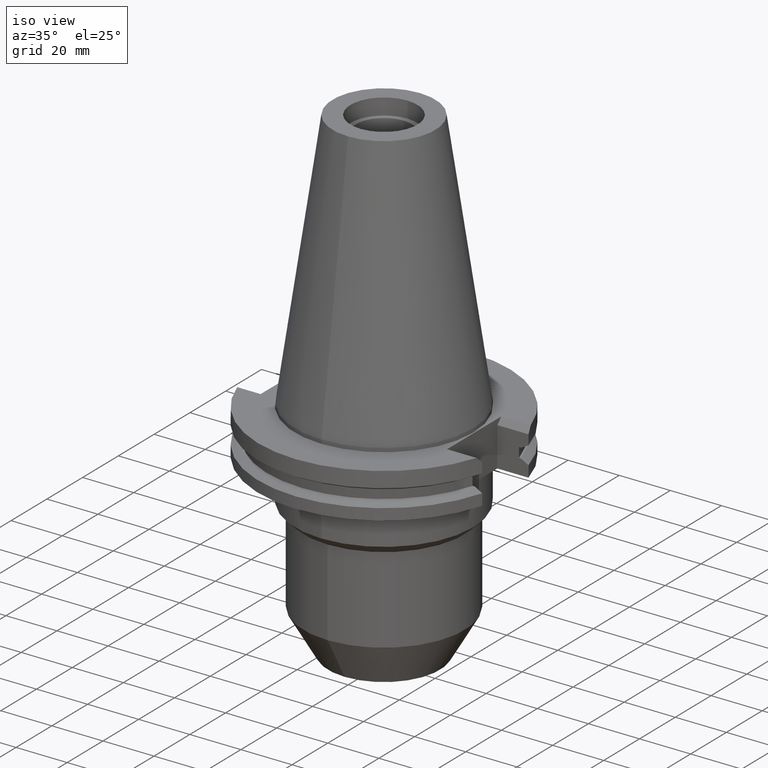
[diagram: clean part render]
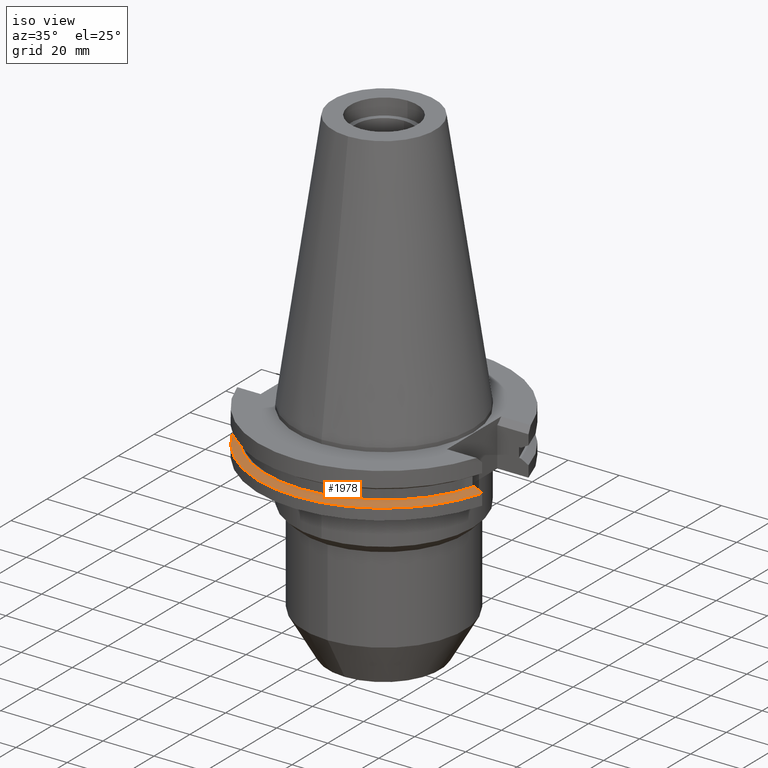
[diagram: same view with one face highlighted and labeled with its STEP entity id]
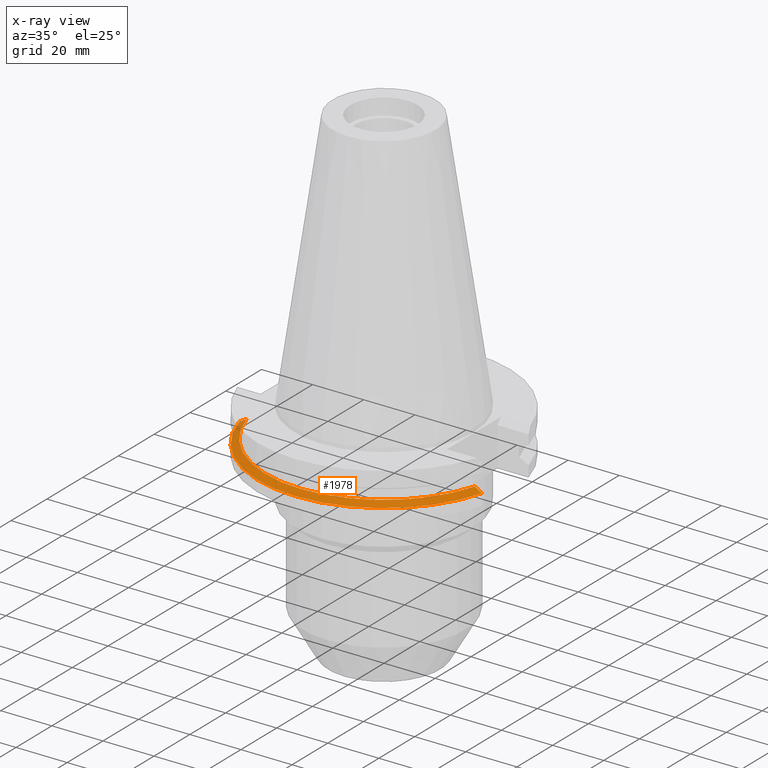
[diagram: x-ray of the same camera — body ghosted, the highlighted face saturated]
A machine part, iso view. The second image highlights one B-rep face of the part: STEP entity #1978.
The next image is the same camera in x-ray: the body ghosted, the highlighted face saturated — about 3% of this face is hidden behind the body in this view.
In plain terms, the highlighted conical surface has half-angle 60 deg.
Its self-contained STEP definition (entity closure, byte-faithful):
#750=CARTESIAN_POINT('',(0.E0,0.E0,-1.30475E1));
#751=DIRECTION('',(0.E0,0.E0,-1.E0));
#752=DIRECTION('',(9.602855947900E-1,-2.790189535476E-1,0.E0));
#753=AXIS2_PLACEMENT_3D('',#750,#751,#752);
#758=CARTESIAN_POINT('',(0.E0,0.E0,-1.30475E1));
#759=DIRECTION('',(0.E0,0.E0,-1.E0));
#760=DIRECTION('',(0.E0,-1.E0,0.E0));
#761=AXIS2_PLACEMENT_3D('',#758,#759,#760);
#782=CARTESIAN_POINT('',(4.458657636813E1,-1.2955E1,-1.30475E1));
#783=CARTESIAN_POINT('',(4.490800201650E1,-1.2955E1,-1.322570517653E1));
#784=CARTESIAN_POINT('',(4.555063729230E1,-1.2955E1,-1.358231688077E1));
#785=CARTESIAN_POINT('',(4.651400683739E1,-1.2955E1,-1.411772345787E1));
#786=CARTESIAN_POINT('',(4.715587471992E1,-1.2955E1,-1.447496507405E1));
#787=CARTESIAN_POINT('',(4.747671146204E1,-1.2955E1,-1.465366676908E1));
#792=CARTESIAN_POINT('',(0.E0,0.E0,-1.465366676908E1));
#793=DIRECTION('',(0.E0,0.E0,-1.E0));
#794=DIRECTION('',(9.647287063661E-1,-2.632461264923E-1,0.E0));
#795=AXIS2_PLACEMENT_3D('',#792,#793,#794);
#800=CARTESIAN_POINT('',(0.E0,0.E0,-1.465366676908E1));
#801=DIRECTION('',(0.E0,0.E0,-1.E0));
#802=DIRECTION('',(0.E0,-1.E0,0.E0));
#803=AXIS2_PLACEMENT_3D('',#800,#801,#802);
#808=CARTESIAN_POINT('',(-4.747671146204E1,-1.2955E1,-1.465366676908E1));
#809=CARTESIAN_POINT('',(-4.715587471991E1,-1.2955E1,-1.447496507405E1));
#810=CARTESIAN_POINT('',(-4.651400683737E1,-1.2955E1,-1.411772345786E1));
#811=CARTESIAN_POINT('',(-4.555063729228E1,-1.2955E1,-1.358231688076E1));
#812=CARTESIAN_POINT('',(-4.490800201650E1,-1.2955E1,-1.322570517653E1));
#813=CARTESIAN_POINT('',(-4.458657636813E1,-1.2955E1,-1.30475E1));
#1358=CARTESIAN_POINT('',(4.747671146204E1,-1.2955E1,-1.465366676908E1));
#1359=VERTEX_POINT('',#1358);
#1360=VERTEX_POINT('',#782);
#1367=CARTESIAN_POINT('',(-4.747671146204E1,-1.2955E1,-1.465366676908E1));
#1368=VERTEX_POINT('',#1367);
#1369=CARTESIAN_POINT('',(0.E0,-4.92125E1,-1.465366676908E1));
#1370=VERTEX_POINT('',#1369);
#1382=CARTESIAN_POINT('',(-4.458657636813E1,-1.2955E1,-1.30475E1));
#1383=VERTEX_POINT('',#1382);
#1397=CARTESIAN_POINT('',(4.240378546272E-14,-4.643053755053E1,-1.30475E1));
#1398=VERTEX_POINT('',#1397);
#1965=CARTESIAN_POINT('',(0.E0,0.E0,-1.385058338454E1));
#1966=DIRECTION('',(0.E0,0.E0,-1.E0));
#1967=DIRECTION('',(0.E0,-1.E0,0.E0));
#1968=AXIS2_PLACEMENT_3D('',#1965,#1966,#1967);
#1969=CONICAL_SURFACE('',#1968,4.782151877527E1,6.E1);
#1970=ORIENTED_EDGE('',*,*,#1845,.T.);
#1971=ORIENTED_EDGE('',*,*,#1873,.T.);
#1972=ORIENTED_EDGE('',*,*,#1871,.T.);
#1973=ORIENTED_EDGE('',*,*,#1895,.T.);
#1974=ORIENTED_EDGE('',*,*,#1957,.F.);
#1975=ORIENTED_EDGE('',*,*,#1955,.F.);
#1976=EDGE_LOOP('',(#1970,#1971,#1972,#1973,#1974,#1975));
#1977=FACE_OUTER_BOUND('',#1976,.F.);
#754=CIRCLE('',#753,4.643053755053E1);
#762=CIRCLE('',#761,4.643053755053E1);
#788=B_SPLINE_CURVE_WITH_KNOTS('',3,(#782,#783,#784,#785,#786,#787),
.UNSPECIFIED.,.F.,.F.,(4,1,1,4),(0.E0,3.333333333333E-1,6.666666666667E-1,1.E0),
.UNSPECIFIED.);
#796=CIRCLE('',#795,4.92125E1);
#804=CIRCLE('',#803,4.92125E1);
#814=B_SPLINE_CURVE_WITH_KNOTS('',3,(#808,#809,#810,#811,#812,#813),
.UNSPECIFIED.,.F.,.F.,(4,1,1,4),(0.E0,3.333333333333E-1,6.666666666667E-1,1.E0),
.UNSPECIFIED.);
#1845=EDGE_CURVE('',#1360,#1359,#788,.T.);
#1871=EDGE_CURVE('',#1370,#1368,#804,.T.);
#1873=EDGE_CURVE('',#1359,#1370,#796,.T.);
#1895=EDGE_CURVE('',#1368,#1383,#814,.T.);
#1955=EDGE_CURVE('',#1360,#1398,#754,.T.);
#1957=EDGE_CURVE('',#1398,#1383,#762,.T.);
#1978=ADVANCED_FACE('',(#1977),#1969,.T.);